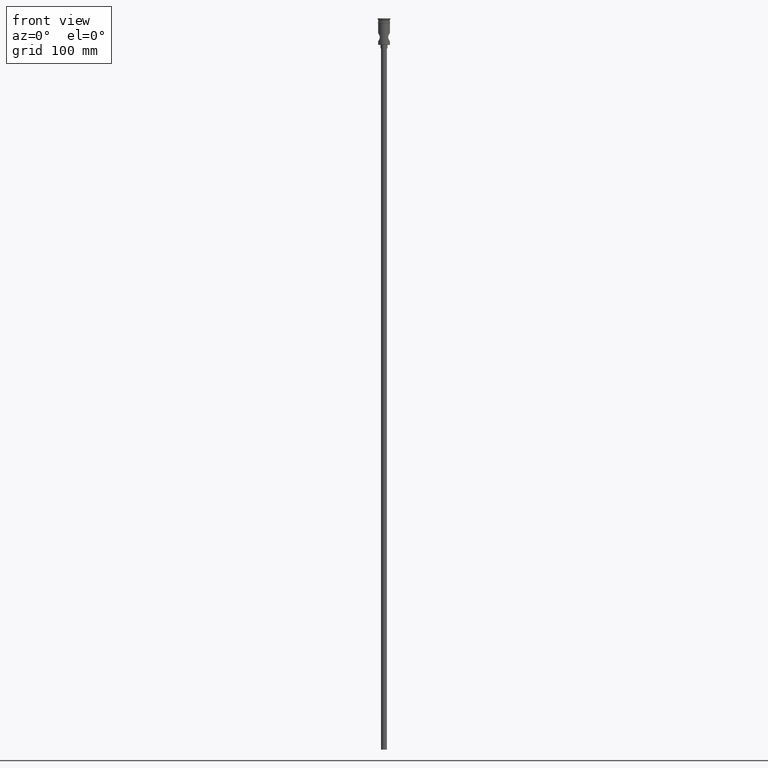
[diagram: clean part render]
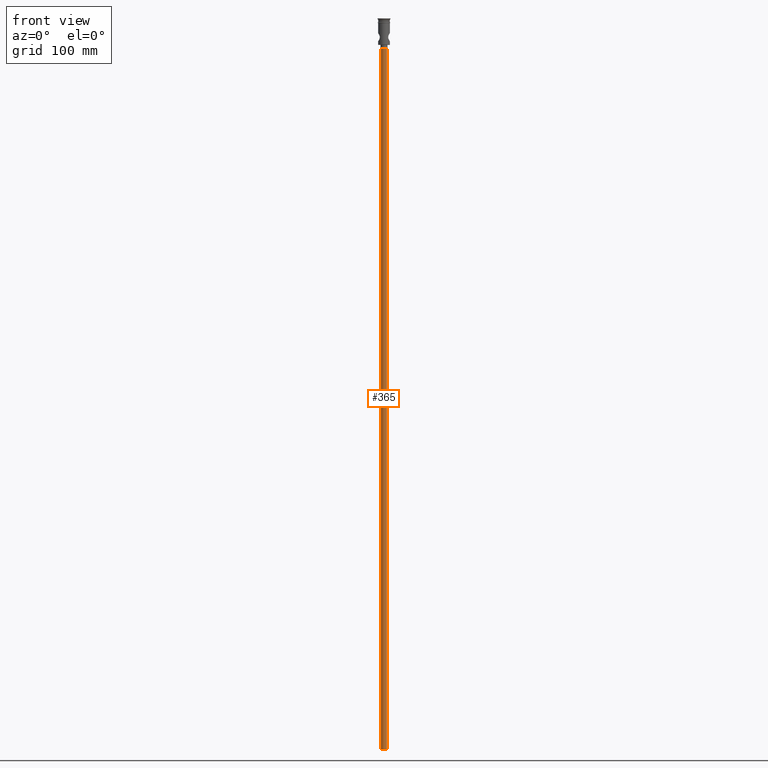
[diagram: same view with one face highlighted and labeled with its STEP entity id]
A machine part, front view. The second image highlights one B-rep face of the part: STEP entity #365.
In plain terms, the highlighted cylindrical surface (edge-blend (fillet) strip) has radius 2.5 mm, axis along (-0, -0, 1).
Its self-contained STEP definition (entity closure, byte-faithful):
#46 = CARTESIAN_POINT ( 'NONE',  ( -2.500000000000000000, 3.061616997868383141E-16, -622.4999999999998863 ) ) ;
#48 = DIRECTION ( 'NONE',  ( -0.000000000000000000, -0.000000000000000000, 1.000000000000000000 ) ) ;
#170 = CYLINDRICAL_SURFACE ( 'NONE', #960, 2.500000000000000000 ) ;
#201 = CARTESIAN_POINT ( 'NONE',  ( -2.500000000000000000, 3.061616997868383141E-16, -622.4999999999998863 ) ) ;
#218 = ORIENTED_EDGE ( 'NONE', *, *, #794, .F. ) ;
#231 = CIRCLE ( 'NONE', #647, 2.500000000000000000 ) ;
#241 = LINE ( 'NONE', #790, #1463 ) ;
#267 = VERTEX_POINT ( 'NONE', #1128 ) ;
#274 = ORIENTED_EDGE ( 'NONE', *, *, #989, .T. ) ;
#295 = VERTEX_POINT ( 'NONE', #892 ) ;
#364 = ORIENTED_EDGE ( 'NONE', *, *, #684, .F. ) ;
#365 = ADVANCED_FACE ( 'NONE', ( #724 ), #170, .T. ) ;
#370 = DIRECTION ( 'NONE',  ( 0.000000000000000000, 0.000000000000000000, -1.000000000000000000 ) ) ;
#406 = DIRECTION ( 'NONE',  ( 1.000000000000000000, 0.000000000000000000, 0.000000000000000000 ) ) ;
#514 = CARTESIAN_POINT ( 'NONE',  ( 0.000000000000000000, 0.000000000000000000, -622.4999999999998863 ) ) ;
#515 = EDGE_CURVE ( 'NONE', #1101, #295, #826, .T. ) ;
#566 = DIRECTION ( 'NONE',  ( -0.000000000000000000, -0.000000000000000000, 1.000000000000000000 ) ) ;
#629 = DIRECTION ( 'NONE',  ( -1.000000000000000000, 0.000000000000000000, 0.000000000000000000 ) ) ;
#647 = AXIS2_PLACEMENT_3D ( 'NONE', #1054, #370, #1281 ) ;
#684 = EDGE_CURVE ( 'NONE', #267, #897, #231, .T. ) ;
#724 = FACE_OUTER_BOUND ( 'NONE', #1268, .T. ) ;
#790 = CARTESIAN_POINT ( 'NONE',  ( 2.500000000000000000, 0.000000000000000000, -622.4999999999998863 ) ) ;
#794 = EDGE_CURVE ( 'NONE', #897, #295, #1285, .T. ) ;
#826 = CIRCLE ( 'NONE', #1293, 2.500000000000000000 ) ;
#831 = DIRECTION ( 'NONE',  ( -0.000000000000000000, -0.000000000000000000, 1.000000000000000000 ) ) ;
#873 = CARTESIAN_POINT ( 'NONE',  ( 0.000000000000000000, 0.000000000000000000, -25.50000000000000000 ) ) ;
#892 = CARTESIAN_POINT ( 'NONE',  ( -2.500000000000000000, 3.061616997868383141E-16, -25.50000000000000000 ) ) ;
#897 = VERTEX_POINT ( 'NONE', #201 ) ;
#960 = AXIS2_PLACEMENT_3D ( 'NONE', #514, #48, #406 ) ;
#989 = EDGE_CURVE ( 'NONE', #267, #1101, #241, .T. ) ;
#1054 = CARTESIAN_POINT ( 'NONE',  ( 0.000000000000000000, 0.000000000000000000, -622.4999999999998863 ) ) ;
#1101 = VERTEX_POINT ( 'NONE', #1169 ) ;
#1128 = CARTESIAN_POINT ( 'NONE',  ( 2.500000000000000000, 0.000000000000000000, -622.4999999999998863 ) ) ;
#1161 = VECTOR ( 'NONE', #831, 1000.000000000000000 ) ;
#1169 = CARTESIAN_POINT ( 'NONE',  ( 2.500000000000000000, 0.000000000000000000, -25.50000000000000000 ) ) ;
#1242 = DIRECTION ( 'NONE',  ( 0.000000000000000000, 0.000000000000000000, -1.000000000000000000 ) ) ;
#1268 = EDGE_LOOP ( 'NONE', ( #218, #364, #274, #1390 ) ) ;
#1281 = DIRECTION ( 'NONE',  ( -1.000000000000000000, 0.000000000000000000, 0.000000000000000000 ) ) ;
#1285 = LINE ( 'NONE', #46, #1161 ) ;
#1293 = AXIS2_PLACEMENT_3D ( 'NONE', #873, #1242, #629 ) ;
#1390 = ORIENTED_EDGE ( 'NONE', *, *, #515, .T. ) ;
#1463 = VECTOR ( 'NONE', #566, 1000.000000000000000 ) ;